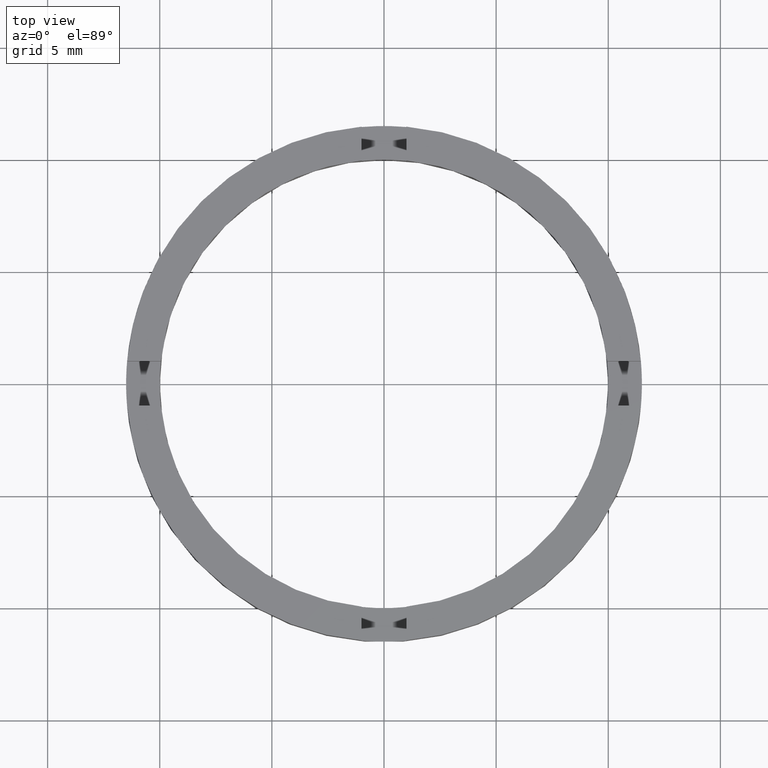
[diagram: clean part render]
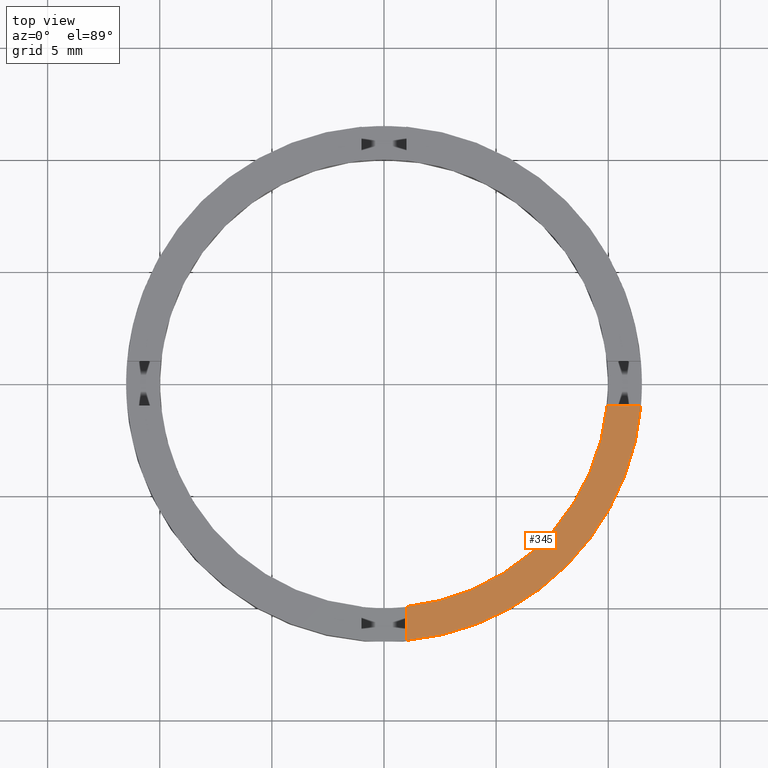
[diagram: same view with one face highlighted and labeled with its STEP entity id]
A machine part, top view. The second image highlights one B-rep face of the part: STEP entity #345.
In plain terms, the highlighted planar face has unit normal (0, 0, 1).
Its self-contained STEP definition (entity closure, byte-faithful):
#30 = ORIENTED_EDGE ( 'NONE', *, *, #621, .F. ) ;
#60 = DIRECTION ( 'NONE',  ( 1.000000000000000000, 0.000000000000000000, 0.000000000000000000 ) ) ;
#66 = AXIS2_PLACEMENT_3D ( 'NONE', #203, #547, #60 ) ;
#104 = DIRECTION ( 'NONE',  ( 0.000000000000000000, 0.000000000000000000, 1.000000000000000000 ) ) ;
#108 = PLANE ( 'NONE',  #751 ) ;
#114 = CARTESIAN_POINT ( 'NONE',  ( 11.45643923738958669, -1.000000000000160094, 2.500000000000000000 ) ) ;
#122 = LINE ( 'NONE', #232, #124 ) ;
#124 = VECTOR ( 'NONE', #695, 1000.000000000000000 ) ;
#148 = CIRCLE ( 'NONE', #252, 9.999999999999998224 ) ;
#154 = FACE_OUTER_BOUND ( 'NONE', #588, .T. ) ;
#186 = DIRECTION ( 'NONE',  ( 1.000000000000000000, 0.000000000000000000, -0.000000000000000000 ) ) ;
#193 = CARTESIAN_POINT ( 'NONE',  ( 0.000000000000000000, 0.000000000000000000, 2.500000000000000000 ) ) ;
#203 = CARTESIAN_POINT ( 'NONE',  ( 0.000000000000000000, 0.000000000000000000, 2.500000000000000000 ) ) ;
#232 = CARTESIAN_POINT ( 'NONE',  ( 1.499999999999997780, -1.000000000000160538, 2.500000000000000000 ) ) ;
#242 = VERTEX_POINT ( 'NONE', #496 ) ;
#252 = AXIS2_PLACEMENT_3D ( 'NONE', #505, #372, #253 ) ;
#253 = DIRECTION ( 'NONE',  ( 1.000000000000000000, 0.000000000000000000, 0.000000000000000000 ) ) ;
#270 = EDGE_CURVE ( 'NONE', #501, #524, #463, .T. ) ;
#282 = ORIENTED_EDGE ( 'NONE', *, *, #270, .T. ) ;
#345 = ADVANCED_FACE ( 'NONE', ( #154 ), #108, .T. ) ;
#363 = CARTESIAN_POINT ( 'NONE',  ( 0.9999999999998350209, -1.500000000000181632, 2.500000000000000000 ) ) ;
#372 = DIRECTION ( 'NONE',  ( 0.000000000000000000, 0.000000000000000000, 1.000000000000000000 ) ) ;
#425 = VECTOR ( 'NONE', #440, 1000.000000000000000 ) ;
#440 = DIRECTION ( 'NONE',  ( -1.301042606982605567E-16, 1.000000000000000000, -0.000000000000000000 ) ) ;
#463 = CIRCLE ( 'NONE', #66, 11.50000000000000000 ) ;
#496 = CARTESIAN_POINT ( 'NONE',  ( 9.949874371066181666, -1.000000000000160094, 2.500000000000000000 ) ) ;
#501 = VERTEX_POINT ( 'NONE', #610 ) ;
#505 = CARTESIAN_POINT ( 'NONE',  ( 0.000000000000000000, 0.000000000000000000, 2.500000000000000000 ) ) ;
#524 = VERTEX_POINT ( 'NONE', #114 ) ;
#547 = DIRECTION ( 'NONE',  ( 0.000000000000000000, 0.000000000000000000, 1.000000000000000000 ) ) ;
#549 = ORIENTED_EDGE ( 'NONE', *, *, #765, .F. ) ;
#588 = EDGE_LOOP ( 'NONE', ( #549, #30, #601, #282 ) ) ;
#589 = EDGE_CURVE ( 'NONE', #501, #710, #659, .T. ) ;
#601 = ORIENTED_EDGE ( 'NONE', *, *, #589, .F. ) ;
#610 = CARTESIAN_POINT ( 'NONE',  ( 0.9999999999998363531, -11.45643923738961334, 2.500000000000000000 ) ) ;
#621 = EDGE_CURVE ( 'NONE', #710, #242, #148, .T. ) ;
#659 = LINE ( 'NONE', #363, #425 ) ;
#695 = DIRECTION ( 'NONE',  ( 1.000000000000000000, 4.336808689942018352E-17, 0.000000000000000000 ) ) ;
#699 = CARTESIAN_POINT ( 'NONE',  ( 0.9999999999998361311, -9.949874371066213641, 2.500000000000000000 ) ) ;
#710 = VERTEX_POINT ( 'NONE', #699 ) ;
#751 = AXIS2_PLACEMENT_3D ( 'NONE', #193, #104, #186 ) ;
#765 = EDGE_CURVE ( 'NONE', #242, #524, #122, .T. ) ;